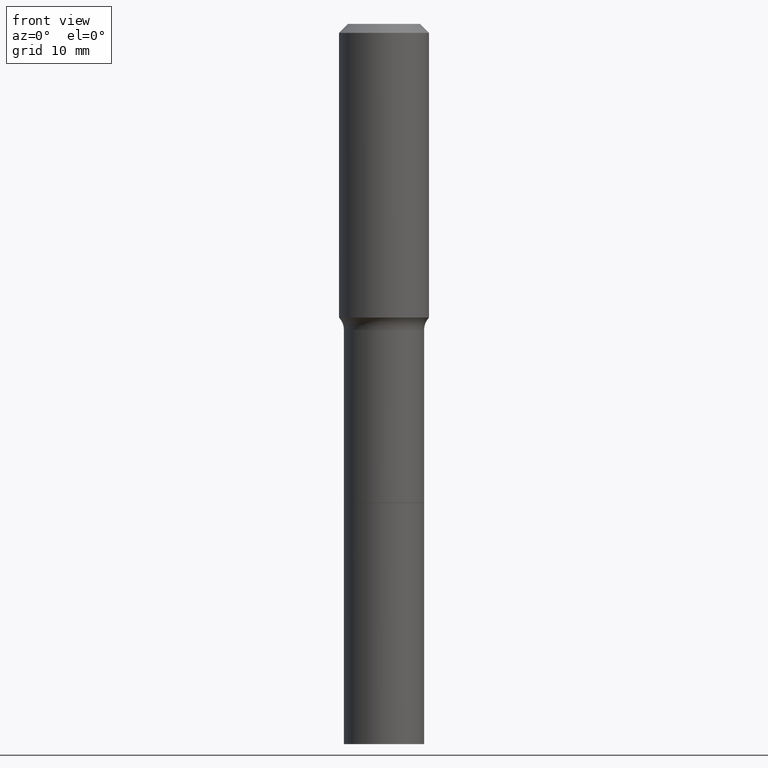
[diagram: clean part render]
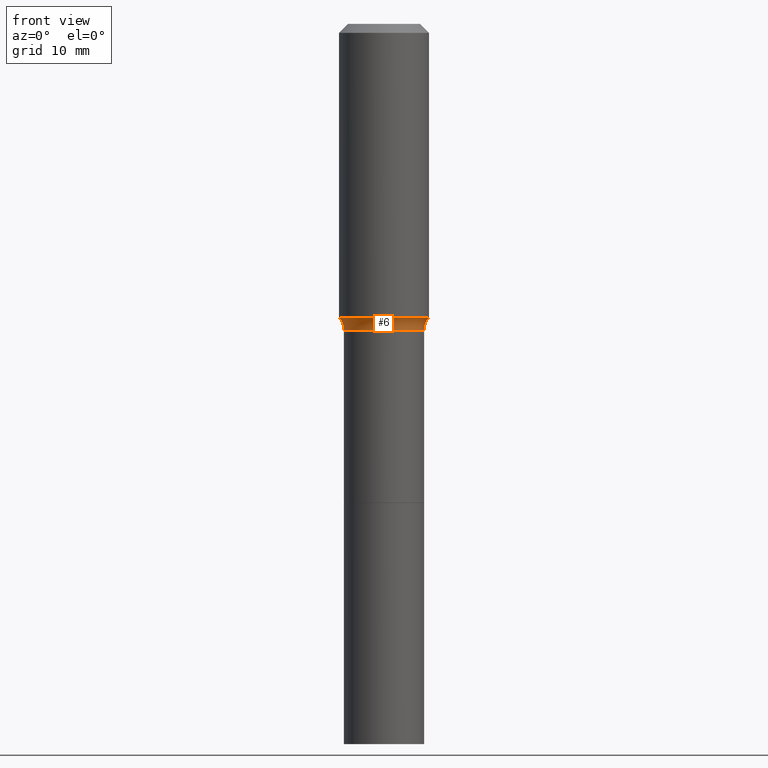
[diagram: same view with one face highlighted and labeled with its STEP entity id]
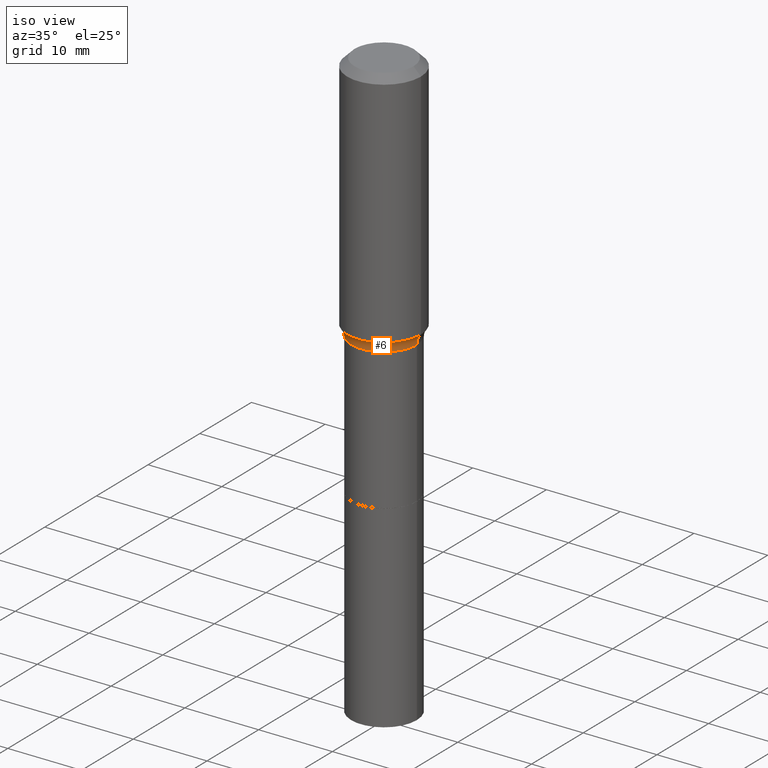
[diagram: same view with one face highlighted and labeled with its STEP entity id]
A machine part, front view. The second image highlights one B-rep face of the part: STEP entity #6.
A second angle (iso view) of the same face is appended — the face is thin or edge-on in the first view.
In plain terms, the highlighted toroidal blend (fillet) surface has major radius 6.4821 mm and minor (blend) radius 2.032 mm.
Its self-contained STEP definition (entity closure, byte-faithful):
#2 = CARTESIAN_POINT ( 'NONE',  ( 0.1751999999999998836, -5.897111981306068614E-15, -1.338600000000000234 ) ) ;
#6 = ADVANCED_FACE ( 'NONE', ( #11 ), #261, .F. ) ;
#7 = CIRCLE ( 'NONE', #201, 0.1966917038704663334 ) ;
#11 = FACE_OUTER_BOUND ( 'NONE', #173, .T. ) ;
#15 = AXIS2_PLACEMENT_3D ( 'NONE', #466, #303, #469 ) ;
#33 = CARTESIAN_POINT ( 'NONE',  ( 0.1966917038704663334, -5.856692983531033288E-15, -1.284040131195000267 ) ) ;
#80 = EDGE_CURVE ( 'NONE', #436, #492, #282, .T. ) ;
#82 = ORIENTED_EDGE ( 'NONE', *, *, #294, .T. ) ;
#84 = DIRECTION ( 'NONE',  ( -2.445468806185136597E-29, 3.491481338843145583E-15, 1.000000000000000000 ) ) ;
#98 = CARTESIAN_POINT ( 'NONE',  ( 3.273504543959424474E-29, -4.673696920175435525E-15, -1.338600000000000234 ) ) ;
#110 = DIRECTION ( 'NONE',  ( 1.000000000000000000, -6.982962677686267499E-15, 0.000000000000000000 ) ) ;
#121 = CARTESIAN_POINT ( 'NONE',  ( 3.273504543959424474E-29, -4.673696920175435525E-15, -1.338600000000000234 ) ) ;
#122 = CARTESIAN_POINT ( 'NONE',  ( -0.1966917038704663334, -3.085623542698680919E-15, -1.284040131195000267 ) ) ;
#173 = EDGE_LOOP ( 'NONE', ( #280, #82, #474, #312 ) ) ;
#190 = CARTESIAN_POINT ( 'NONE',  ( 3.140080086727243021E-29, -4.483202156393047465E-15, -1.284040131195000267 ) ) ;
#199 = DIRECTION ( 'NONE',  ( -1.000000000000000000, 7.105427357601005014E-15, 0.000000000000000000 ) ) ;
#201 = AXIS2_PLACEMENT_3D ( 'NONE', #190, #236, #458 ) ;
#236 = DIRECTION ( 'NONE',  ( -2.445468806185136597E-29, 3.491481338843145583E-15, 1.000000000000000000 ) ) ;
#258 = EDGE_CURVE ( 'NONE', #289, #492, #337, .T. ) ;
#261 = TOROIDAL_SURFACE ( 'NONE', #505, 0.2551999999999998714, 0.08000000000000007105 ) ;
#276 = DIRECTION ( 'NONE',  ( 7.105427357601001859E-15, 1.000000000000000000, -3.491481338843145583E-15 ) ) ;
#280 = ORIENTED_EDGE ( 'NONE', *, *, #381, .F. ) ;
#282 = CIRCLE ( 'NONE', #445, 0.1751999999999998836 ) ;
#289 = VERTEX_POINT ( 'NONE', #33 ) ;
#294 = EDGE_CURVE ( 'NONE', #319, #436, #313, .T. ) ;
#300 = CARTESIAN_POINT ( 'NONE',  ( -0.2551999999999998714, -2.860391858515660371E-15, -1.338600000000000234 ) ) ;
#303 = DIRECTION ( 'NONE',  ( -6.982962677686266711E-15, -1.000000000000000000, 3.491481338843145583E-15 ) ) ;
#312 = ORIENTED_EDGE ( 'NONE', *, *, #258, .F. ) ;
#313 = CIRCLE ( 'NONE', #353, 0.08000000000000007105 ) ;
#319 = VERTEX_POINT ( 'NONE', #122 ) ;
#337 = CIRCLE ( 'NONE', #15, 0.08000000000000007105 ) ;
#342 = CARTESIAN_POINT ( 'NONE',  ( -0.1751999999999998836, -4.747733122871738246E-15, -1.338600000000000234 ) ) ;
#353 = AXIS2_PLACEMENT_3D ( 'NONE', #300, #276, #199 ) ;
#381 = EDGE_CURVE ( 'NONE', #319, #289, #7, .T. ) ;
#411 = DIRECTION ( 'NONE',  ( 1.000000000000000000, -6.982962677686268288E-15, 4.883557194083113462E-29 ) ) ;
#436 = VERTEX_POINT ( 'NONE', #342 ) ;
#445 = AXIS2_PLACEMENT_3D ( 'NONE', #98, #449, #110 ) ;
#449 = DIRECTION ( 'NONE',  ( -2.445468806185136597E-29, 3.491481338843145583E-15, 1.000000000000000000 ) ) ;
#458 = DIRECTION ( 'NONE',  ( 1.000000000000000000, -6.982962677686267499E-15, 0.000000000000000000 ) ) ;
#466 = CARTESIAN_POINT ( 'NONE',  ( 0.2551999999999998714, -6.455748995520969477E-15, -1.338600000000000234 ) ) ;
#469 = DIRECTION ( 'NONE',  ( 1.000000000000000000, -6.982962677686265922E-15, 0.000000000000000000 ) ) ;
#474 = ORIENTED_EDGE ( 'NONE', *, *, #80, .T. ) ;
#492 = VERTEX_POINT ( 'NONE', #2 ) ;
#505 = AXIS2_PLACEMENT_3D ( 'NONE', #121, #84, #411 ) ;